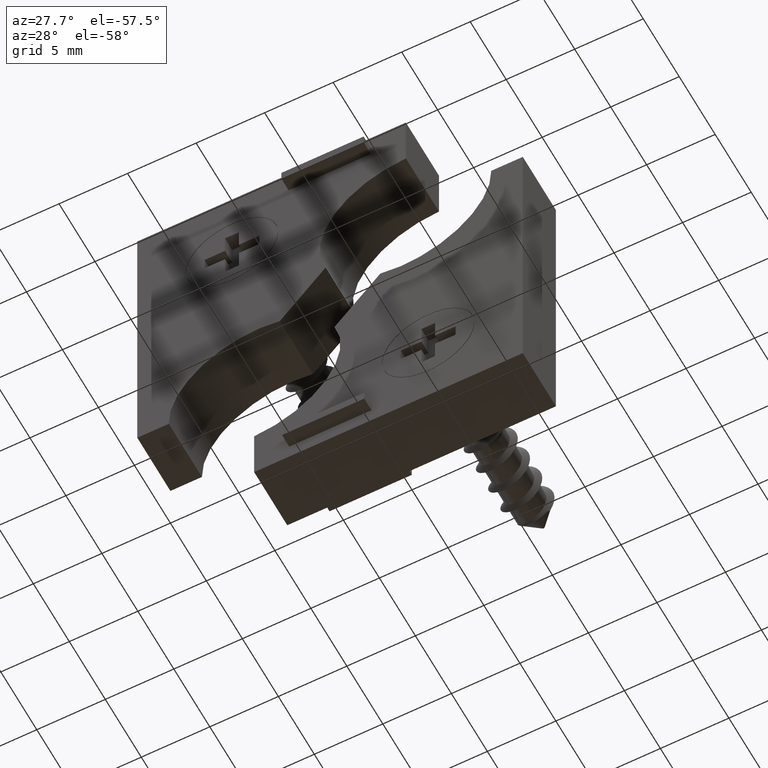
[diagram: clean part render]
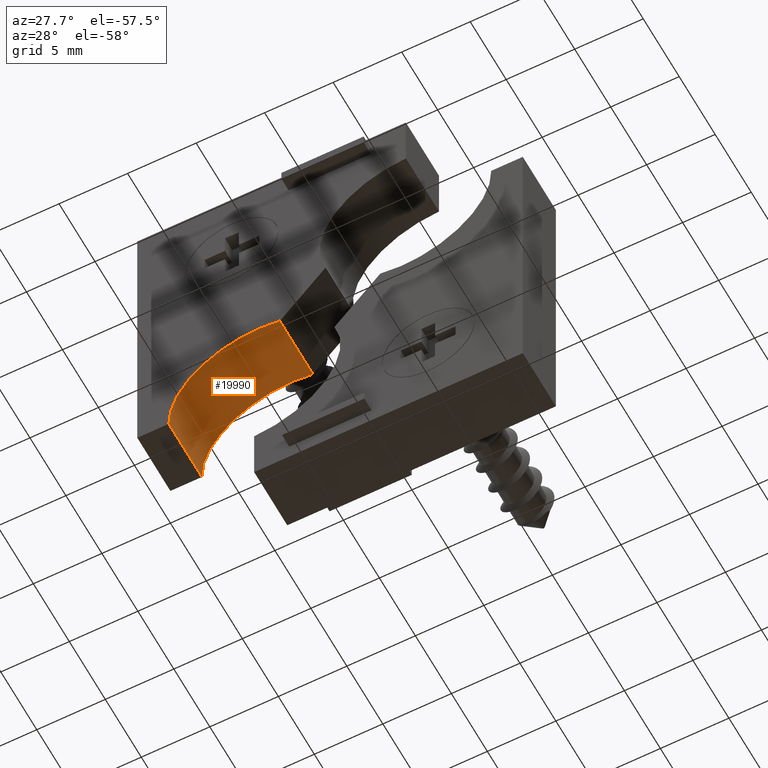
[diagram: same view with one face highlighted and labeled with its STEP entity id]
A machine part, auxiliary view. The second image highlights one B-rep face of the part: STEP entity #19990.
In plain terms, the highlighted cylindrical surface (partial cylindrical patch) has radius 6.5 mm, axis along (0, -1, -0).
Its self-contained STEP definition (entity closure, byte-faithful):
#100=CARTESIAN_POINT('',(15.597735,24.057183,-16.85));
#110=VERTEX_POINT('',#100);
#160=CARTESIAN_POINT('',(15.597735,25.1171854,-16.85));
#170=DIRECTION('',(0.,-1.,0.));
#180=VECTOR('',#170,1.);
#190=LINE('',#160,#180);
#200=CARTESIAN_POINT('',(15.597735,19.457183,-16.85));
#210=VERTEX_POINT('',#200);
#220=EDGE_CURVE('',#110,#210,#190,.T.);
#1020=CARTESIAN_POINT('',(17.197735,19.457183,-10.55));
#1030=DIRECTION('',(0.,-1.,0.));
#1040=DIRECTION('',(-1.,0.,0.));
#1050=AXIS2_PLACEMENT_3D('',#1020,#1030,#1040);
#1060=CIRCLE('',#1050,6.5);
#1070=CARTESIAN_POINT('',(23.69600400028,19.457183,-10.3999999999997));
#1080=VERTEX_POINT('',#1070);
#1090=EDGE_CURVE('',#210,#1080,#1060,.T.);
#2370=CARTESIAN_POINT('',(23.69600400028,24.057183,-10.3999999999997));
#2380=VERTEX_POINT('',#2370);
#2410=CARTESIAN_POINT('',(17.197735,24.057183,-10.55));
#2420=DIRECTION('',(0.,-1.,0.));
#2430=DIRECTION('',(-1.,0.,0.));
#2440=AXIS2_PLACEMENT_3D('',#2410,#2420,#2430);
#2450=CIRCLE('',#2440,6.5);
#2460=EDGE_CURVE('',#110,#2380,#2450,.T.);
#19290=CARTESIAN_POINT('',(23.69600400028,25.1171854,-10.3999999999997))
;
#19300=DIRECTION('',(0.,-1.,0.));
#19310=VECTOR('',#19300,1.);
#19320=LINE('',#19290,#19310);
#19330=EDGE_CURVE('',#2380,#1080,#19320,.T.);
#19880=CARTESIAN_POINT('',(17.197735,25.1171854,-10.55));
#19890=DIRECTION('',(0.,-1.,0.));
#19900=DIRECTION('',(-1.,0.,0.));
#19910=AXIS2_PLACEMENT_3D('',#19880,#19890,#19900);
#19920=CYLINDRICAL_SURFACE('',#19910,6.5);
#19930=ORIENTED_EDGE('',*,*,#1090,.T.);
#19940=ORIENTED_EDGE('',*,*,#220,.T.);
#19950=ORIENTED_EDGE('',*,*,#2460,.F.);
#19960=ORIENTED_EDGE('',*,*,#19330,.F.);
#19970=EDGE_LOOP('',(#19960,#19950,#19940,#19930));
#19980=FACE_OUTER_BOUND('',#19970,.T.);
#19990=ADVANCED_FACE('',(#19980),#19920,.F.);